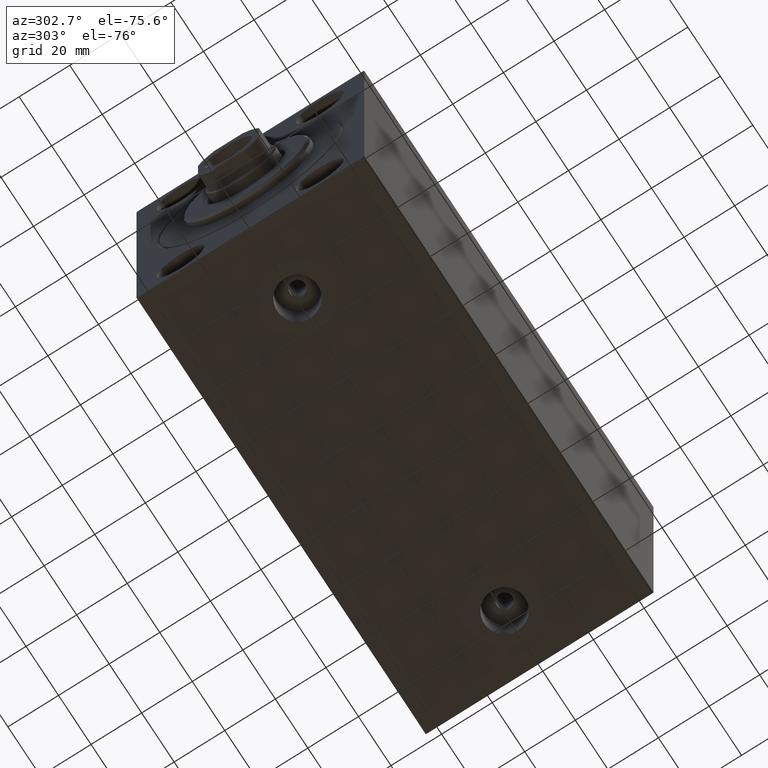
[diagram: clean part render]
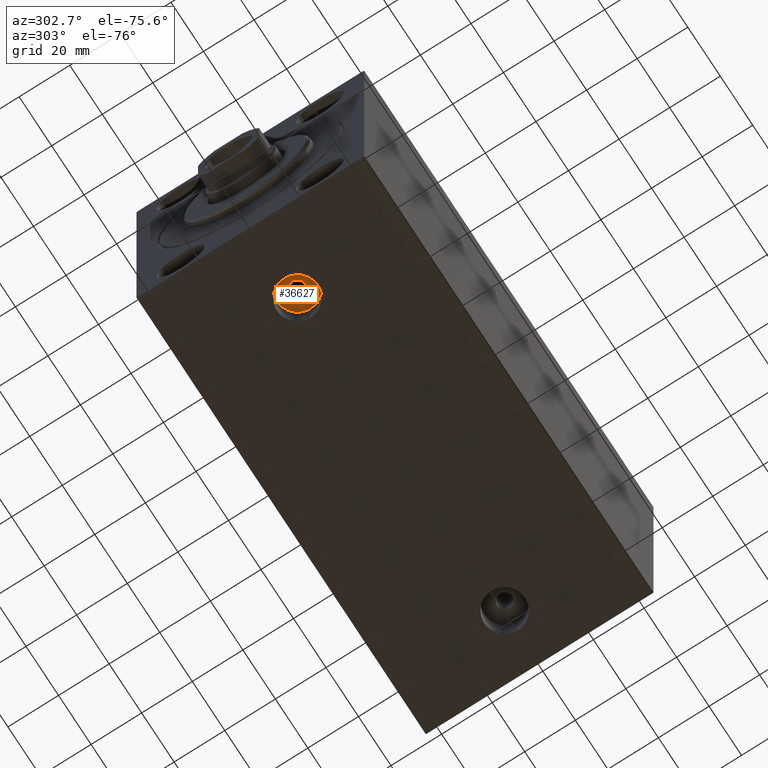
[diagram: same view with one face highlighted and labeled with its STEP entity id]
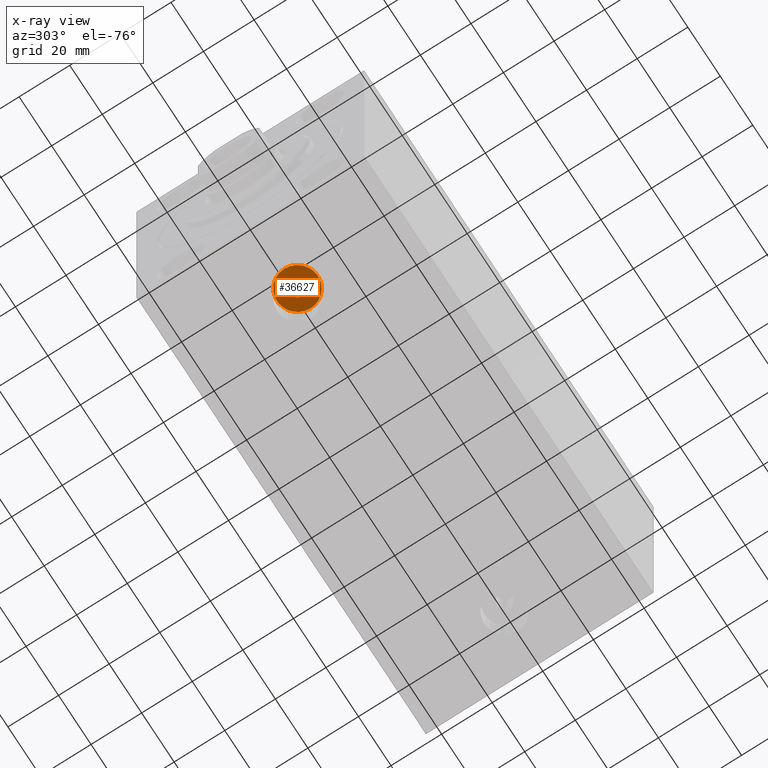
[diagram: x-ray of the same camera — body ghosted, the highlighted face saturated]
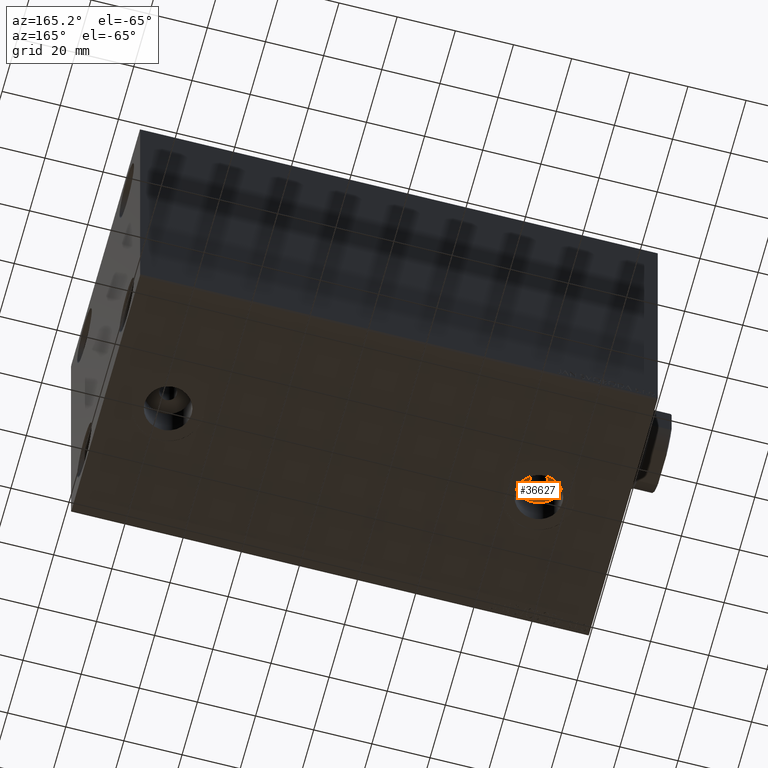
[diagram: same view with one face highlighted and labeled with its STEP entity id]
A machine part, auxiliary view. The second image highlights one B-rep face of the part: STEP entity #36627.
The next image is the same camera in x-ray: the body ghosted, the highlighted face saturated — about 0% of this face is hidden behind the body in this view.
A second angle (auxiliary view) of the same face is appended — the face is thin or edge-on in the first view.
In plain terms, the highlighted planar face has unit normal (0, 0, -1).
Its self-contained STEP definition (entity closure, byte-faithful):
#1072 = EDGE_LOOP ( 'NONE', ( #24628, #27566 ) ) ;
#1360 = FACE_BOUND ( 'NONE', #1072, .T. ) ;
#2409 = EDGE_LOOP ( 'NONE', ( #18579, #14464 ) ) ;
#4659 = CIRCLE ( 'NONE', #35431, 8.084999999999999076 ) ;
#6145 = AXIS2_PLACEMENT_3D ( 'NONE', #27063, #9407, #37395 ) ;
#7057 = CARTESIAN_POINT ( 'NONE',  ( 20.91500000000000270, -6.196433163362529681E-15, -44.50000000000000711 ) ) ;
#7813 = VERTEX_POINT ( 'NONE', #28746 ) ;
#8245 = PLANE ( 'NONE',  #15415 ) ;
#9407 = DIRECTION ( 'NONE',  ( 0.000000000000000000, 0.000000000000000000, -1.000000000000000000 ) ) ;
#11443 = CARTESIAN_POINT ( 'NONE',  ( 29.00000000000000000, -6.196433163362529681E-15, -44.50000000000000711 ) ) ;
#12098 = DIRECTION ( 'NONE',  ( -1.000000000000000000, 0.000000000000000000, 0.000000000000000000 ) ) ;
#14464 = ORIENTED_EDGE ( 'NONE', *, *, #35570, .T. ) ;
#14647 = VERTEX_POINT ( 'NONE', #7057 ) ;
#15415 = AXIS2_PLACEMENT_3D ( 'NONE', #11443, #33453, #32785 ) ;
#15710 = VERTEX_POINT ( 'NONE', #15782 ) ;
#15782 = CARTESIAN_POINT ( 'NONE',  ( 26.00000000000000355, -6.196433163362529681E-15, -44.50000000000000711 ) ) ;
#18579 = ORIENTED_EDGE ( 'NONE', *, *, #43567, .T. ) ;
#19645 = DIRECTION ( 'NONE',  ( -1.000000000000000000, 0.000000000000000000, 0.000000000000000000 ) ) ;
#21185 = CARTESIAN_POINT ( 'NONE',  ( 37.08500000000000085, -5.206306226251895314E-15, -44.50000000000000711 ) ) ;
#21532 = CIRCLE ( 'NONE', #6145, 2.999999999999999112 ) ;
#24628 = ORIENTED_EDGE ( 'NONE', *, *, #30901, .F. ) ;
#24813 = AXIS2_PLACEMENT_3D ( 'NONE', #43959, #43734, #19645 ) ;
#27063 = CARTESIAN_POINT ( 'NONE',  ( 29.00000000000000000, -6.196433163362529681E-15, -44.50000000000000711 ) ) ;
#27510 = DIRECTION ( 'NONE',  ( 0.000000000000000000, 0.000000000000000000, -1.000000000000000000 ) ) ;
#27566 = ORIENTED_EDGE ( 'NONE', *, *, #45267, .F. ) ;
#27888 = AXIS2_PLACEMENT_3D ( 'NONE', #37163, #27510, #44915 ) ;
#28746 = CARTESIAN_POINT ( 'NONE',  ( 32.00000000000000000, -5.829039123618324237E-15, -44.50000000000000711 ) ) ;
#29099 = CARTESIAN_POINT ( 'NONE',  ( 29.00000000000000000, -6.196433163362529681E-15, -44.50000000000000711 ) ) ;
#30901 = EDGE_CURVE ( 'NONE', #15710, #7813, #32885, .T. ) ;
#32785 = DIRECTION ( 'NONE',  ( -1.000000000000000000, 0.000000000000000000, -0.000000000000000000 ) ) ;
#32885 = CIRCLE ( 'NONE', #24813, 2.999999999999999112 ) ;
#33453 = DIRECTION ( 'NONE',  ( 0.000000000000000000, 0.000000000000000000, -1.000000000000000000 ) ) ;
#35431 = AXIS2_PLACEMENT_3D ( 'NONE', #29099, #36661, #12098 ) ;
#35570 = EDGE_CURVE ( 'NONE', #42339, #14647, #42515, .T. ) ;
#36006 = FACE_OUTER_BOUND ( 'NONE', #2409, .T. ) ;
#36627 = ADVANCED_FACE ( 'NONE', ( #1360, #36006 ), #8245, .T. ) ;
#36661 = DIRECTION ( 'NONE',  ( 0.000000000000000000, 0.000000000000000000, -1.000000000000000000 ) ) ;
#37163 = CARTESIAN_POINT ( 'NONE',  ( 29.00000000000000000, -6.196433163362529681E-15, -44.50000000000000711 ) ) ;
#37395 = DIRECTION ( 'NONE',  ( -1.000000000000000000, 0.000000000000000000, 0.000000000000000000 ) ) ;
#42339 = VERTEX_POINT ( 'NONE', #21185 ) ;
#42515 = CIRCLE ( 'NONE', #27888, 8.084999999999999076 ) ;
#43567 = EDGE_CURVE ( 'NONE', #14647, #42339, #4659, .T. ) ;
#43734 = DIRECTION ( 'NONE',  ( 0.000000000000000000, 0.000000000000000000, -1.000000000000000000 ) ) ;
#43959 = CARTESIAN_POINT ( 'NONE',  ( 29.00000000000000000, -6.196433163362529681E-15, -44.50000000000000711 ) ) ;
#44915 = DIRECTION ( 'NONE',  ( -1.000000000000000000, 0.000000000000000000, 0.000000000000000000 ) ) ;
#45267 = EDGE_CURVE ( 'NONE', #7813, #15710, #21532, .T. ) ;